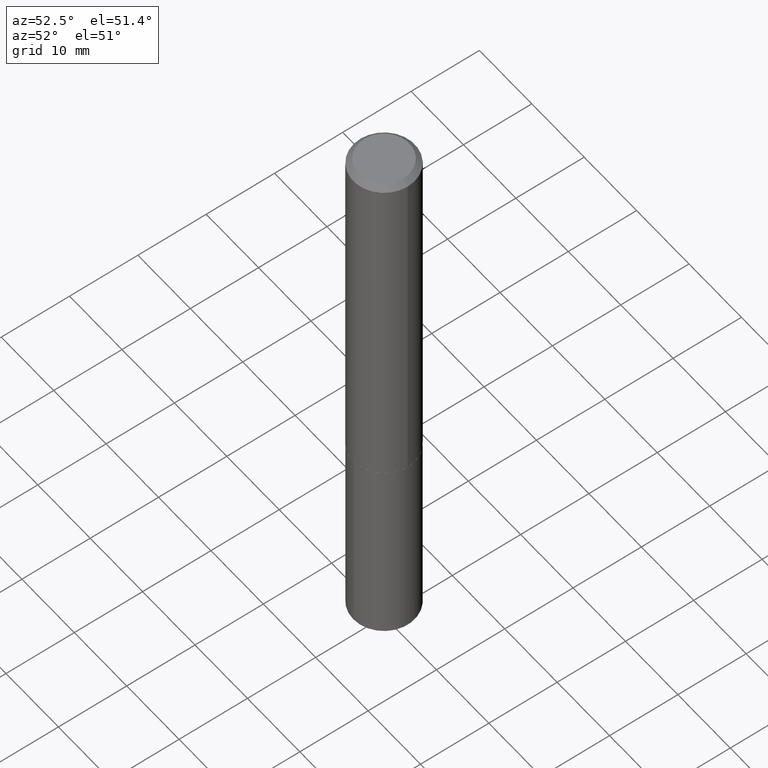
[diagram: clean part render]
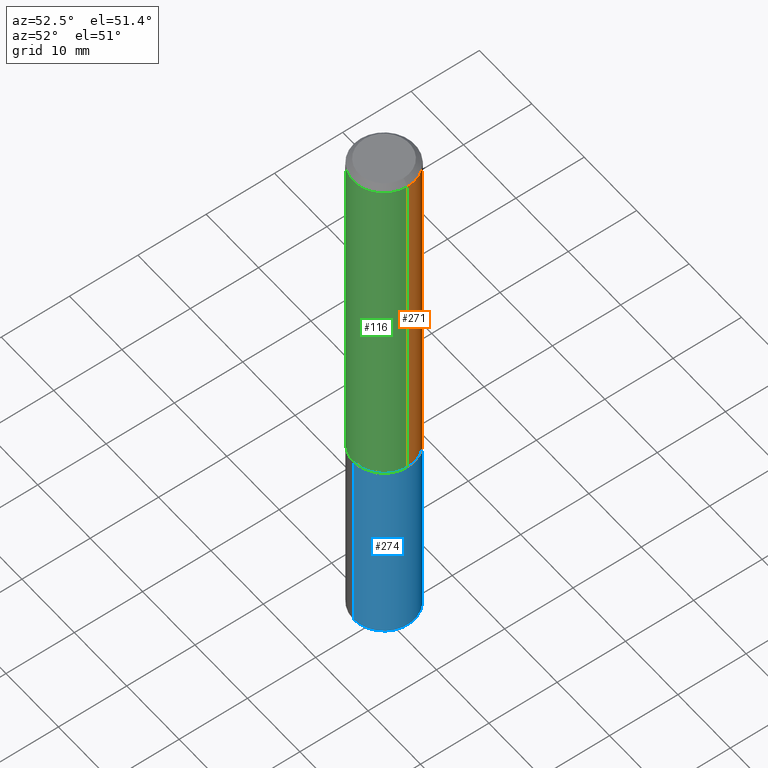
[diagram: same view with three faces highlighted in distinct colors, each labeled with its STEP entity id]
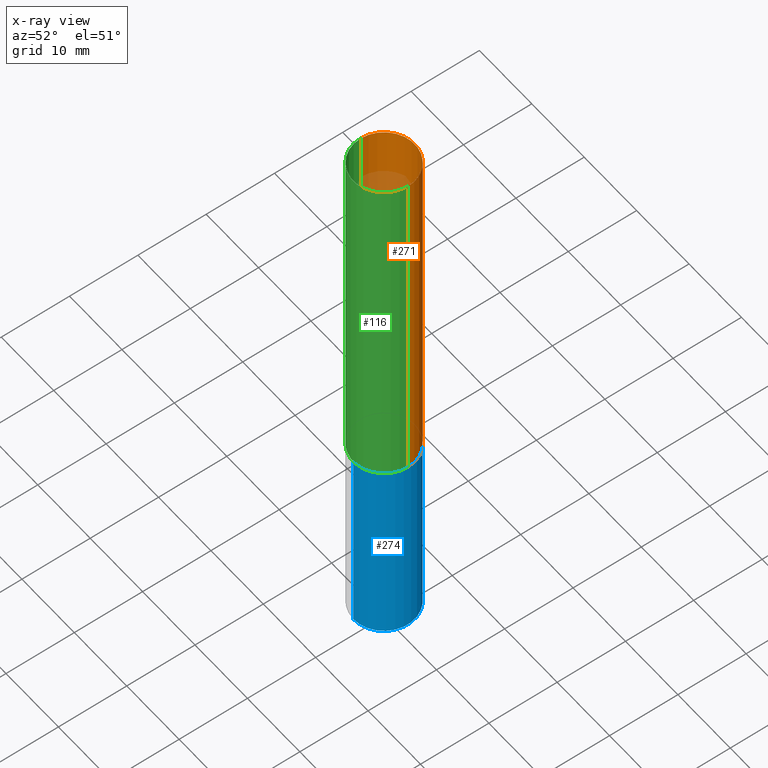
[diagram: x-ray of the same camera — body ghosted, the three highlighted faces saturated]
A machine part, auxiliary view with three faces highlighted in distinct colors.
The next image is the same camera in x-ray (body ghosted, the three faces saturated) — at least one of them is partly hidden behind the body in this view.
Their STEP definitions:

[orange] entity #271 — the highlighted cylindrical surface (partial cylindrical patch) has radius 4.4996 mm, axis along (-0, 0, 1).
#26 = CARTESIAN_POINT ( 'NONE',  ( 0.000000000000000000, 0.000000000000000000, 0.000000000000000000 ) ) ;
#32 = VERTEX_POINT ( 'NONE', #309 ) ;
#36 = ORIENTED_EDGE ( 'NONE', *, *, #244, .T. ) ;
#42 = CARTESIAN_POINT ( 'NONE',  ( 0.1771500000000000019, -1.346140630190971297E-15, -0.03125000000000019429 ) ) ;
#49 = CARTESIAN_POINT ( 'NONE',  ( -0.1771500000000001129, 1.258726456399018282E-15, -8.713893512386570931E-30 ) ) ;
#54 = ORIENTED_EDGE ( 'NONE', *, *, #97, .F. ) ;
#60 = VERTEX_POINT ( 'NONE', #42 ) ;
#72 = DIRECTION ( 'NONE',  ( -2.445468806185136597E-29, 3.491481338843145583E-15, 1.000000000000000000 ) ) ;
#75 = DIRECTION ( 'NONE',  ( 1.000000000000000000, -6.982962677686266711E-15, 4.876176775795935793E-29 ) ) ;
#83 = VECTOR ( 'NONE', #234, 39.37007874015748143 ) ;
#84 = VERTEX_POINT ( 'NONE', #196 ) ;
#86 = ORIENTED_EDGE ( 'NONE', *, *, #258, .T. ) ;
#97 = EDGE_CURVE ( 'NONE', #84, #60, #252, .T. ) ;
#98 = CARTESIAN_POINT ( 'NONE',  ( 7.642090019328598283E-31, -1.091087918388489651E-16, -0.03125000000000019429 ) ) ;
#101 = CARTESIAN_POINT ( 'NONE',  ( 0.1771500000000001129, -1.237031838352122986E-15, 8.638147158322505565E-30 ) ) ;
#107 = DIRECTION ( 'NONE',  ( 1.000000000000000000, -6.982962677686263555E-15, 0.000000000000000000 ) ) ;
#137 = CIRCLE ( 'NONE', #365, 0.1771500000000002240 ) ;
#171 = ORIENTED_EDGE ( 'NONE', *, *, #364, .F. ) ;
#180 = VECTOR ( 'NONE', #315, 39.37007874015748143 ) ;
#191 = DIRECTION ( 'NONE',  ( 1.000000000000000000, -6.982962677686266711E-15, 0.000000000000000000 ) ) ;
#196 = CARTESIAN_POINT ( 'NONE',  ( 0.1771500000000002240, -8.520611059312812251E-15, -2.086100000000000954 ) ) ;
#219 = VERTEX_POINT ( 'NONE', #360 ) ;
#234 = DIRECTION ( 'NONE',  ( -2.445468806185136877E-29, 3.491481338843145188E-15, 1.000000000000000000 ) ) ;
#244 = EDGE_CURVE ( 'NONE', #32, #219, #265, .T. ) ;
#252 = LINE ( 'NONE', #101, #180 ) ;
#258 = EDGE_CURVE ( 'NONE', #84, #32, #137, .T. ) ;
#262 = FACE_OUTER_BOUND ( 'NONE', #311, .T. ) ;
#265 = LINE ( 'NONE', #49, #83 ) ;
#270 = AXIS2_PLACEMENT_3D ( 'NONE', #26, #386, #75 ) ;
#271 = ADVANCED_FACE ( 'NONE', ( #262 ), #296, .T. ) ;
#273 = CIRCLE ( 'NONE', #297, 0.1771500000000000019 ) ;
#296 = CYLINDRICAL_SURFACE ( 'NONE', #270, 0.1771500000000001129 ) ;
#297 = AXIS2_PLACEMENT_3D ( 'NONE', #98, #72, #191 ) ;
#299 = CARTESIAN_POINT ( 'NONE',  ( 5.101492476582815716E-29, -7.283579220960688279E-15, -2.086100000000000954 ) ) ;
#302 = DIRECTION ( 'NONE',  ( -2.445468806185136597E-29, 3.491481338843145583E-15, 1.000000000000000000 ) ) ;
#309 = CARTESIAN_POINT ( 'NONE',  ( -0.1771500000000002240, -6.024852764561670589E-15, -2.086100000000000954 ) ) ;
#311 = EDGE_LOOP ( 'NONE', ( #86, #36, #171, #54 ) ) ;
#315 = DIRECTION ( 'NONE',  ( -2.445468806185136877E-29, 3.491481338843145188E-15, 1.000000000000000000 ) ) ;
#360 = CARTESIAN_POINT ( 'NONE',  ( -0.1771500000000000019, -2.437617550000750605E-15, -0.03125000000000019429 ) ) ;
#364 = EDGE_CURVE ( 'NONE', #60, #219, #273, .T. ) ;
#365 = AXIS2_PLACEMENT_3D ( 'NONE', #299, #302, #107 ) ;
#386 = DIRECTION ( 'NONE',  ( -2.445468806185136597E-29, 3.491481338843145583E-15, 1.000000000000000000 ) ) ;

[blue] entity #274 — the highlighted cylindrical surface (partial cylindrical patch) has radius 4.4996 mm, axis along (-0, 0, 1).
#5 = ORIENTED_EDGE ( 'NONE', *, *, #134, .T. ) ;
#21 = DIRECTION ( 'NONE',  ( -2.445771156139322232E-29, 3.491048356500061313E-15, 1.000000000000000000 ) ) ;
#23 = CARTESIAN_POINT ( 'NONE',  ( -1.237031838352043113E-15, -0.1771500000000113817, -3.242622672999742051 ) ) ;
#47 = DIRECTION ( 'NONE',  ( -2.445771156139322232E-29, 3.491048356500061313E-15, 1.000000000000000000 ) ) ;
#48 = VERTEX_POINT ( 'NONE', #66 ) ;
#55 = EDGE_CURVE ( 'NONE', #123, #203, #342, .T. ) ;
#57 = CIRCLE ( 'NONE', #186, 0.1771500000000000019 ) ;
#62 = DIRECTION ( 'NONE',  ( -2.445771156139322512E-29, 3.491048356500061707E-15, 1.000000000000000000 ) ) ;
#65 = DIRECTION ( 'NONE',  ( -2.445771156139322512E-29, 3.491048356500061707E-15, 1.000000000000000000 ) ) ;
#66 = CARTESIAN_POINT ( 'NONE',  ( 1.258726456399097168E-15, 0.1771499999999887054, -3.242622672999742939 ) ) ;
#105 = FACE_OUTER_BOUND ( 'NONE', #179, .T. ) ;
#119 = ORIENTED_EDGE ( 'NONE', *, *, #55, .F. ) ;
#123 = VERTEX_POINT ( 'NONE', #129 ) ;
#129 = CARTESIAN_POINT ( 'NONE',  ( -1.237031838352071118E-15, -0.1771500000000073016, -2.086600000000000232 ) ) ;
#134 = EDGE_CURVE ( 'NONE', #48, #203, #223, .T. ) ;
#135 = LINE ( 'NONE', #347, #343 ) ;
#136 = DIRECTION ( 'NONE',  ( -6.982962677686265922E-15, -1.000000000000000000, 3.084220145260246224E-15 ) ) ;
#141 = DIRECTION ( 'NONE',  ( -6.982962677686265922E-15, -1.000000000000000000, 3.084220145260246224E-15 ) ) ;
#163 = DIRECTION ( 'NONE',  ( -6.982962677686265922E-15, -1.000000000000000000, 3.084220145260246224E-15 ) ) ;
#179 = EDGE_LOOP ( 'NONE', ( #272, #5, #119, #361 ) ) ;
#181 = AXIS2_PLACEMENT_3D ( 'NONE', #325, #47, #141 ) ;
#186 = AXIS2_PLACEMENT_3D ( 'NONE', #231, #260, #163 ) ;
#203 = VERTEX_POINT ( 'NONE', #318 ) ;
#204 = CYLINDRICAL_SURFACE ( 'NONE', #181, 0.1771500000000000019 ) ;
#215 = VERTEX_POINT ( 'NONE', #23 ) ;
#223 = LINE ( 'NONE', #282, #269 ) ;
#229 = AXIS2_PLACEMENT_3D ( 'NONE', #348, #21, #136 ) ;
#231 = CARTESIAN_POINT ( 'NONE',  ( 7.930082120451756435E-29, -1.132105601428266761E-14, -3.242622672999742495 ) ) ;
#260 = DIRECTION ( 'NONE',  ( -2.445771156139322232E-29, 3.491048356500061313E-15, 1.000000000000000000 ) ) ;
#269 = VECTOR ( 'NONE', #62, 39.37007874015748143 ) ;
#272 = ORIENTED_EDGE ( 'NONE', *, *, #371, .T. ) ;
#274 = ADVANCED_FACE ( 'NONE', ( #105 ), #204, .T. ) ;
#282 = CARTESIAN_POINT ( 'NONE',  ( 1.258726456399068374E-15, 0.1771499999999927299, -2.086600000000001121 ) ) ;
#318 = CARTESIAN_POINT ( 'NONE',  ( 1.258726456399096971E-15, 0.1771499999999927299, -2.086600000000001121 ) ) ;
#325 = CARTESIAN_POINT ( 'NONE',  ( 5.102715210985907397E-29, -7.285324961630108994E-15, -2.086600000000000676 ) ) ;
#342 = CIRCLE ( 'NONE', #229, 0.1771500000000000019 ) ;
#343 = VECTOR ( 'NONE', #65, 39.37007874015748143 ) ;
#347 = CARTESIAN_POINT ( 'NONE',  ( -1.237031838352071118E-15, -0.1771500000000073016, -2.086600000000000232 ) ) ;
#348 = CARTESIAN_POINT ( 'NONE',  ( 5.102715210985907397E-29, -7.285324961630108994E-15, -2.086600000000000676 ) ) ;
#361 = ORIENTED_EDGE ( 'NONE', *, *, #362, .F. ) ;
#362 = EDGE_CURVE ( 'NONE', #215, #123, #135, .T. ) ;
#371 = EDGE_CURVE ( 'NONE', #215, #48, #57, .T. ) ;

[green] entity #116 — the highlighted cylindrical surface (partial cylindrical patch) has radius 4.4996 mm, axis along (-0, 0, 1).
#19 = DIRECTION ( 'NONE',  ( -2.445468806185136597E-29, 3.491481338843145583E-15, 1.000000000000000000 ) ) ;
#27 = DIRECTION ( 'NONE',  ( 1.000000000000000000, -6.982962677686263555E-15, 0.000000000000000000 ) ) ;
#28 = AXIS2_PLACEMENT_3D ( 'NONE', #289, #225, #131 ) ;
#32 = VERTEX_POINT ( 'NONE', #309 ) ;
#42 = CARTESIAN_POINT ( 'NONE',  ( 0.1771500000000000019, -1.346140630190971297E-15, -0.03125000000000019429 ) ) ;
#49 = CARTESIAN_POINT ( 'NONE',  ( -0.1771500000000001129, 1.258726456399018282E-15, -8.713893512386570931E-30 ) ) ;
#60 = VERTEX_POINT ( 'NONE', #42 ) ;
#73 = CARTESIAN_POINT ( 'NONE',  ( 5.101492476582815716E-29, -7.283579220960688279E-15, -2.086100000000000954 ) ) ;
#83 = VECTOR ( 'NONE', #234, 39.37007874015748143 ) ;
#84 = VERTEX_POINT ( 'NONE', #196 ) ;
#87 = ORIENTED_EDGE ( 'NONE', *, *, #97, .T. ) ;
#97 = EDGE_CURVE ( 'NONE', #84, #60, #252, .T. ) ;
#101 = CARTESIAN_POINT ( 'NONE',  ( 0.1771500000000001129, -1.237031838352122986E-15, 8.638147158322505565E-30 ) ) ;
#115 = AXIS2_PLACEMENT_3D ( 'NONE', #73, #165, #27 ) ;
#116 = ADVANCED_FACE ( 'NONE', ( #380 ), #382, .T. ) ;
#121 = CIRCLE ( 'NONE', #28, 0.1771500000000000019 ) ;
#131 = DIRECTION ( 'NONE',  ( 1.000000000000000000, -6.982962677686266711E-15, 0.000000000000000000 ) ) ;
#148 = ORIENTED_EDGE ( 'NONE', *, *, #176, .F. ) ;
#165 = DIRECTION ( 'NONE',  ( -2.445468806185136597E-29, 3.491481338843145583E-15, 1.000000000000000000 ) ) ;
#176 = EDGE_CURVE ( 'NONE', #219, #60, #121, .T. ) ;
#180 = VECTOR ( 'NONE', #315, 39.37007874015748143 ) ;
#182 = EDGE_LOOP ( 'NONE', ( #336, #245, #87, #148 ) ) ;
#196 = CARTESIAN_POINT ( 'NONE',  ( 0.1771500000000002240, -8.520611059312812251E-15, -2.086100000000000954 ) ) ;
#219 = VERTEX_POINT ( 'NONE', #360 ) ;
#225 = DIRECTION ( 'NONE',  ( -2.445468806185136597E-29, 3.491481338843145583E-15, 1.000000000000000000 ) ) ;
#230 = DIRECTION ( 'NONE',  ( 1.000000000000000000, -6.982962677686266711E-15, 4.876176775795935793E-29 ) ) ;
#234 = DIRECTION ( 'NONE',  ( -2.445468806185136877E-29, 3.491481338843145188E-15, 1.000000000000000000 ) ) ;
#244 = EDGE_CURVE ( 'NONE', #32, #219, #265, .T. ) ;
#245 = ORIENTED_EDGE ( 'NONE', *, *, #264, .T. ) ;
#252 = LINE ( 'NONE', #101, #180 ) ;
#264 = EDGE_CURVE ( 'NONE', #32, #84, #295, .T. ) ;
#265 = LINE ( 'NONE', #49, #83 ) ;
#289 = CARTESIAN_POINT ( 'NONE',  ( 7.642090019328598283E-31, -1.091087918388489651E-16, -0.03125000000000019429 ) ) ;
#292 = CARTESIAN_POINT ( 'NONE',  ( 0.000000000000000000, 0.000000000000000000, 0.000000000000000000 ) ) ;
#295 = CIRCLE ( 'NONE', #115, 0.1771500000000002240 ) ;
#309 = CARTESIAN_POINT ( 'NONE',  ( -0.1771500000000002240, -6.024852764561670589E-15, -2.086100000000000954 ) ) ;
#315 = DIRECTION ( 'NONE',  ( -2.445468806185136877E-29, 3.491481338843145188E-15, 1.000000000000000000 ) ) ;
#336 = ORIENTED_EDGE ( 'NONE', *, *, #244, .F. ) ;
#337 = AXIS2_PLACEMENT_3D ( 'NONE', #292, #19, #230 ) ;
#360 = CARTESIAN_POINT ( 'NONE',  ( -0.1771500000000000019, -2.437617550000750605E-15, -0.03125000000000019429 ) ) ;
#380 = FACE_OUTER_BOUND ( 'NONE', #182, .T. ) ;
#382 = CYLINDRICAL_SURFACE ( 'NONE', #337, 0.1771500000000001129 ) ;